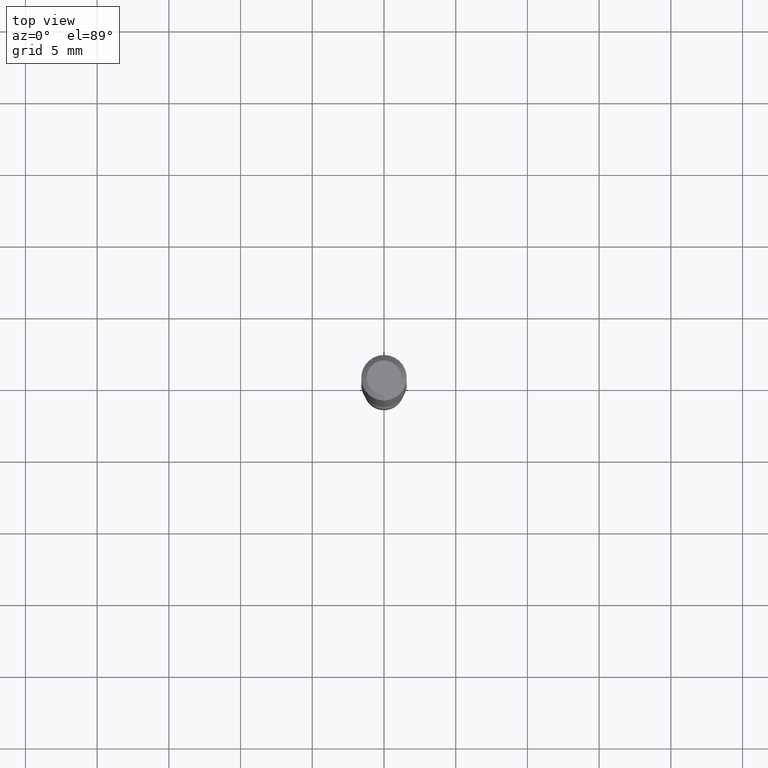
[diagram: clean part render]
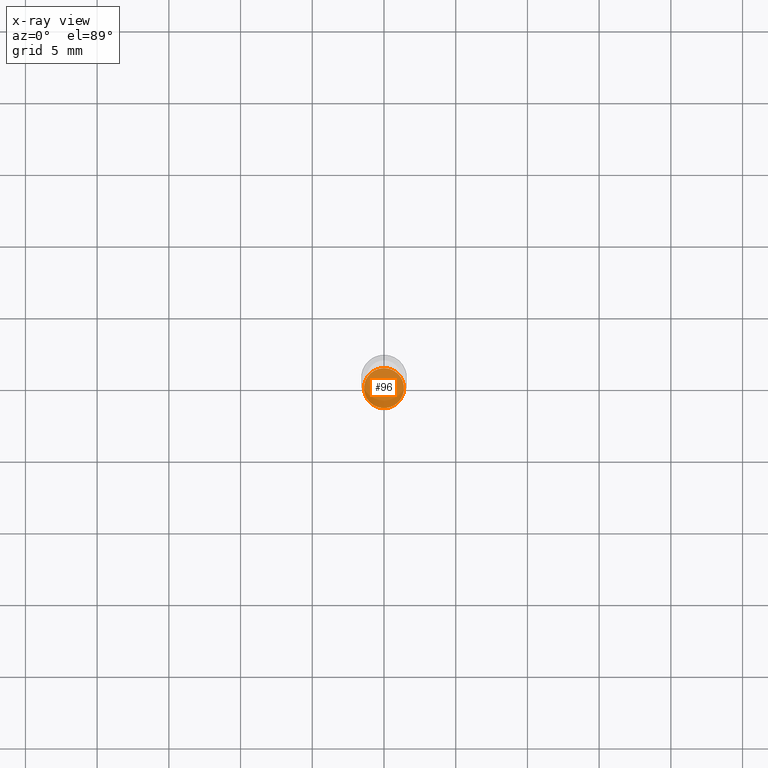
[diagram: x-ray — body ghosted, one internal face saturated and labeled with its STEP entity id]
A machine part, top view, then the same camera in x-ray: the body is ghosted and one INTERNAL B-rep face — a face not visible from any outside direction — is saturated and labeled: STEP entity #96.
In plain terms, the highlighted planar face has unit normal (-0, 0, 1).
Its self-contained STEP definition (entity closure, byte-faithful):
#16 = CARTESIAN_POINT ( 'NONE',  ( 3.840629472727855124E-16, 0.05499999999999417161, -1.670000000000000151 ) ) ;
#60 = DIRECTION ( 'NONE',  ( -6.982962677686266711E-15, -1.000000000000000000, 4.966996352116842287E-15 ) ) ;
#72 = EDGE_CURVE ( 'NONE', #112, #89, #438, .T. ) ;
#85 = CARTESIAN_POINT ( 'NONE',  ( 4.083860021089427178E-29, -5.830878211679746103E-15, -1.669999999999999929 ) ) ;
#89 = VERTEX_POINT ( 'NONE', #493 ) ;
#96 = ADVANCED_FACE ( 'NONE', ( #387 ), #279, .F. ) ;
#112 = VERTEX_POINT ( 'NONE', #243 ) ;
#128 = DIRECTION ( 'NONE',  ( -2.445425162328998423E-29, 3.491543839329189399E-15, 1.000000000000000000 ) ) ;
#195 = DIRECTION ( 'NONE',  ( -6.982962677686265922E-15, -1.000000000000000000, 3.491543839329189794E-15 ) ) ;
#205 = EDGE_LOOP ( 'NONE', ( #316, #213 ) ) ;
#213 = ORIENTED_EDGE ( 'NONE', *, *, #72, .F. ) ;
#220 = DIRECTION ( 'NONE',  ( -2.445425162328998423E-29, 3.491543839329189399E-15, 1.000000000000000000 ) ) ;
#225 = CIRCLE ( 'NONE', #469, 0.05500000000000000028 ) ;
#227 = DIRECTION ( 'NONE',  ( -6.982962677686266711E-15, -1.000000000000000000, 4.966996352116842287E-15 ) ) ;
#243 = CARTESIAN_POINT ( 'NONE',  ( 3.907985046680961743E-16, 0.05499999999999421324, -1.670000000000000151 ) ) ;
#259 = AXIS2_PLACEMENT_3D ( 'NONE', #16, #347, #195 ) ;
#275 = AXIS2_PLACEMENT_3D ( 'NONE', #511, #220, #227 ) ;
#279 = PLANE ( 'NONE',  #259 ) ;
#316 = ORIENTED_EDGE ( 'NONE', *, *, #324, .F. ) ;
#324 = EDGE_CURVE ( 'NONE', #89, #112, #225, .T. ) ;
#347 = DIRECTION ( 'NONE',  ( -2.445425162328997862E-29, 3.491543839329189794E-15, 1.000000000000000000 ) ) ;
#387 = FACE_OUTER_BOUND ( 'NONE', #205, .T. ) ;
#438 = CIRCLE ( 'NONE', #275, 0.05500000000000000028 ) ;
#469 = AXIS2_PLACEMENT_3D ( 'NONE', #85, #128, #60 ) ;
#493 = CARTESIAN_POINT ( 'NONE',  ( -3.840629472727041611E-16, -0.05500000000000587752, -1.669999999999999707 ) ) ;
#511 = CARTESIAN_POINT ( 'NONE',  ( 4.083860021089427178E-29, -5.830878211679746103E-15, -1.669999999999999929 ) ) ;